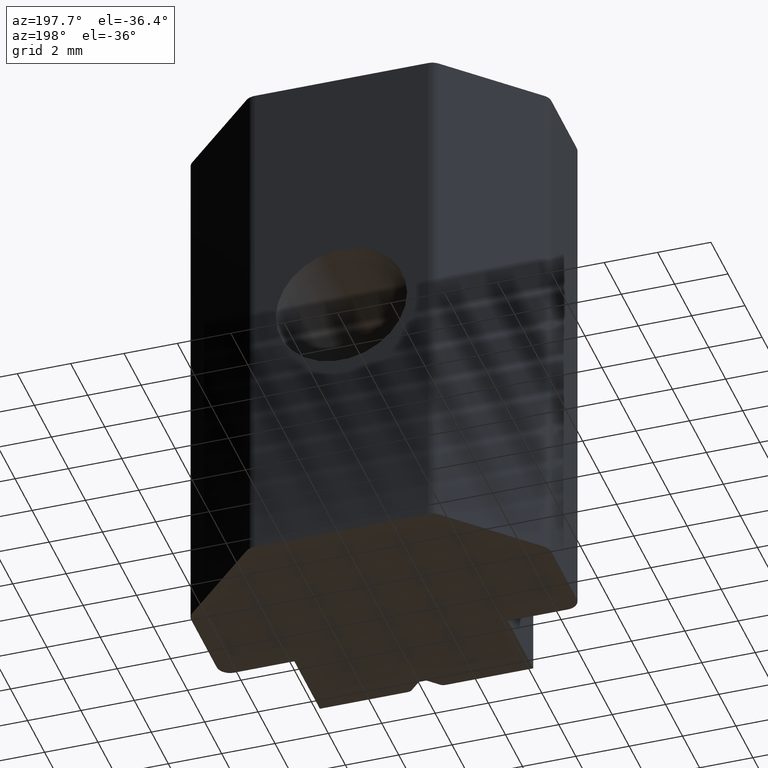
[diagram: clean part render]
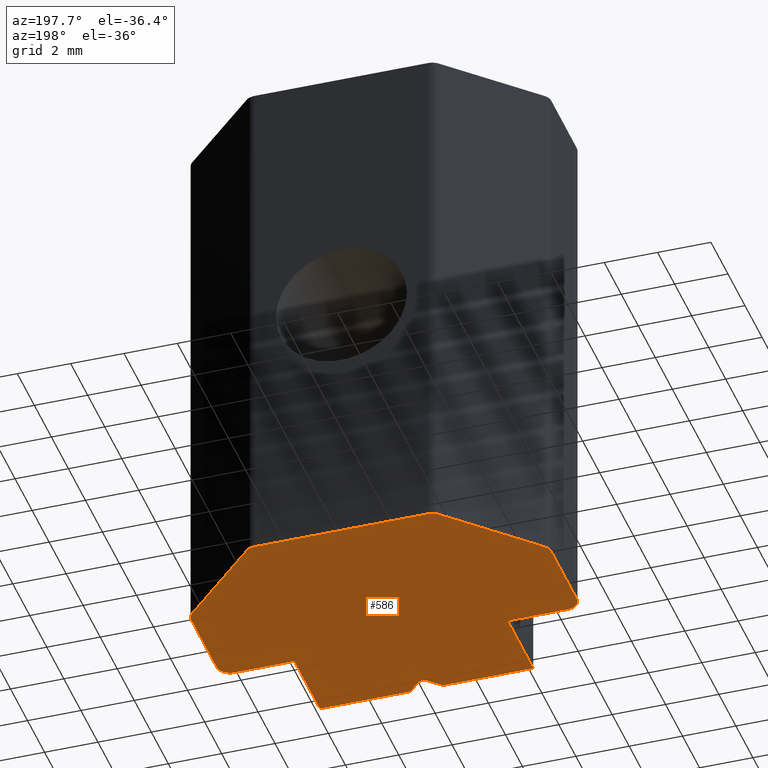
[diagram: same view with one face highlighted and labeled with its STEP entity id]
A machine part, auxiliary view. The second image highlights one B-rep face of the part: STEP entity #586.
In plain terms, the highlighted planar face has unit normal (0, 0, 1).
Its self-contained STEP definition (entity closure, byte-faithful):
#22=PLANE('',#651);
#46=FACE_OUTER_BOUND('',#76,.T.);
#76=EDGE_LOOP('',(#454,#455,#456,#457,#458,#459,#460,#461,#462,#463,#464,
#465,#466,#467,#468,#469,#470,#471,#472,#473,#474,#475));
#108=LINE('',#932,#163);
#112=LINE('',#940,#167);
#119=LINE('',#961,#174);
#126=LINE('',#977,#181);
#127=LINE('',#980,#182);
#128=LINE('',#982,#183);
#129=LINE('',#986,#184);
#130=LINE('',#990,#185);
#131=LINE('',#994,#186);
#132=LINE('',#998,#187);
#133=LINE('',#1002,#188);
#134=LINE('',#1006,#189);
#135=LINE('',#1007,#190);
#163=VECTOR('',#712,10.);
#167=VECTOR('',#718,10.);
#174=VECTOR('',#743,10.);
#181=VECTOR('',#760,10.);
#182=VECTOR('',#763,10.);
#183=VECTOR('',#764,10.);
#184=VECTOR('',#767,10.);
#185=VECTOR('',#770,10.);
#186=VECTOR('',#773,10.);
#187=VECTOR('',#776,10.);
#188=VECTOR('',#779,10.);
#189=VECTOR('',#782,10.);
#190=VECTOR('',#783,10.);
#219=CIRCLE('',#634,0.25);
#220=CIRCLE('',#638,0.25);
#222=CIRCLE('',#642,0.249999999999999);
#225=CIRCLE('',#652,0.499999999999999);
#226=CIRCLE('',#653,0.500000000000005);
#227=CIRCLE('',#654,0.499999999999994);
#228=CIRCLE('',#655,0.5);
#229=CIRCLE('',#656,0.500000000000001);
#230=CIRCLE('',#657,0.499999999999999);
#252=VERTEX_POINT('',#923);
#253=VERTEX_POINT('',#925);
#254=VERTEX_POINT('',#929);
#255=VERTEX_POINT('',#931);
#258=VERTEX_POINT('',#939);
#259=VERTEX_POINT('',#943);
#262=VERTEX_POINT('',#953);
#267=VERTEX_POINT('',#975);
#268=VERTEX_POINT('',#979);
#269=VERTEX_POINT('',#981);
#270=VERTEX_POINT('',#983);
#271=VERTEX_POINT('',#985);
#272=VERTEX_POINT('',#987);
#273=VERTEX_POINT('',#989);
#274=VERTEX_POINT('',#991);
#275=VERTEX_POINT('',#993);
#276=VERTEX_POINT('',#995);
#277=VERTEX_POINT('',#997);
#278=VERTEX_POINT('',#999);
#279=VERTEX_POINT('',#1001);
#280=VERTEX_POINT('',#1003);
#281=VERTEX_POINT('',#1005);
#313=EDGE_CURVE('',#253,#252,#219,.T.);
#316=EDGE_CURVE('',#255,#254,#108,.T.);
#320=EDGE_CURVE('',#258,#253,#112,.T.);
#322=EDGE_CURVE('',#259,#258,#220,.T.);
#328=EDGE_CURVE('',#254,#262,#222,.T.);
#331=EDGE_CURVE('',#262,#259,#119,.T.);
#339=EDGE_CURVE('',#252,#267,#126,.T.);
#340=EDGE_CURVE('',#267,#268,#127,.T.);
#341=EDGE_CURVE('',#268,#269,#128,.T.);
#342=EDGE_CURVE('',#269,#270,#225,.T.);
#343=EDGE_CURVE('',#270,#271,#129,.T.);
#344=EDGE_CURVE('',#271,#272,#226,.T.);
#345=EDGE_CURVE('',#272,#273,#130,.T.);
#346=EDGE_CURVE('',#273,#274,#227,.T.);
#347=EDGE_CURVE('',#274,#275,#131,.T.);
#348=EDGE_CURVE('',#275,#276,#228,.T.);
#349=EDGE_CURVE('',#276,#277,#132,.T.);
#350=EDGE_CURVE('',#277,#278,#229,.T.);
#351=EDGE_CURVE('',#278,#279,#133,.T.);
#352=EDGE_CURVE('',#279,#280,#230,.T.);
#353=EDGE_CURVE('',#280,#281,#134,.T.);
#354=EDGE_CURVE('',#281,#255,#135,.T.);
#454=ORIENTED_EDGE('',*,*,#328,.T.);
#455=ORIENTED_EDGE('',*,*,#331,.T.);
#456=ORIENTED_EDGE('',*,*,#322,.T.);
#457=ORIENTED_EDGE('',*,*,#320,.T.);
#458=ORIENTED_EDGE('',*,*,#313,.T.);
#459=ORIENTED_EDGE('',*,*,#339,.T.);
#460=ORIENTED_EDGE('',*,*,#340,.T.);
#461=ORIENTED_EDGE('',*,*,#341,.T.);
#462=ORIENTED_EDGE('',*,*,#342,.T.);
#463=ORIENTED_EDGE('',*,*,#343,.T.);
#464=ORIENTED_EDGE('',*,*,#344,.T.);
#465=ORIENTED_EDGE('',*,*,#345,.T.);
#466=ORIENTED_EDGE('',*,*,#346,.T.);
#467=ORIENTED_EDGE('',*,*,#347,.T.);
#468=ORIENTED_EDGE('',*,*,#348,.T.);
#469=ORIENTED_EDGE('',*,*,#349,.T.);
#470=ORIENTED_EDGE('',*,*,#350,.T.);
#471=ORIENTED_EDGE('',*,*,#351,.T.);
#472=ORIENTED_EDGE('',*,*,#352,.T.);
#473=ORIENTED_EDGE('',*,*,#353,.T.);
#474=ORIENTED_EDGE('',*,*,#354,.T.);
#475=ORIENTED_EDGE('',*,*,#316,.T.);
#586=ADVANCED_FACE('',(#46),#22,.F.);
#634=AXIS2_PLACEMENT_3D('',#926,#706,#707);
#638=AXIS2_PLACEMENT_3D('',#944,#722,#723);
#642=AXIS2_PLACEMENT_3D('',#955,#734,#735);
#651=AXIS2_PLACEMENT_3D('',#978,#761,#762);
#652=AXIS2_PLACEMENT_3D('',#984,#765,#766);
#653=AXIS2_PLACEMENT_3D('',#988,#768,#769);
#654=AXIS2_PLACEMENT_3D('',#992,#771,#772);
#655=AXIS2_PLACEMENT_3D('',#996,#774,#775);
#656=AXIS2_PLACEMENT_3D('',#1000,#777,#778);
#657=AXIS2_PLACEMENT_3D('',#1004,#780,#781);
#706=DIRECTION('center_axis',(0.,0.,-1.));
#707=DIRECTION('ref_axis',(5.55111512312579E-16,1.,0.));
#712=DIRECTION('',(-1.,0.,0.));
#718=DIRECTION('',(-0.707106781186547,-0.707106781186548,0.));
#722=DIRECTION('center_axis',(0.,0.,1.));
#723=DIRECTION('ref_axis',(0.707106781186547,0.707106781186548,0.));
#734=DIRECTION('center_axis',(0.,0.,-1.));
#735=DIRECTION('ref_axis',(0.707106781186548,0.707106781186547,0.));
#743=DIRECTION('',(-0.707106781186545,0.707106781186549,0.));
#760=DIRECTION('',(-1.,0.,0.));
#761=DIRECTION('center_axis',(0.,0.,1.));
#762=DIRECTION('ref_axis',(1.,0.,0.));
#763=DIRECTION('',(0.,1.,0.));
#764=DIRECTION('',(-1.,0.,0.));
#765=DIRECTION('center_axis',(0.,0.,-1.));
#766=DIRECTION('ref_axis',(-1.,0.,0.));
#767=DIRECTION('',(0.,1.,0.));
#768=DIRECTION('center_axis',(0.,0.,-1.));
#769=DIRECTION('ref_axis',(-0.707106781186549,0.707106781186546,0.));
#770=DIRECTION('',(0.707106781186547,0.707106781186548,0.));
#771=DIRECTION('center_axis',(0.,0.,-1.));
#772=DIRECTION('ref_axis',(0.,1.,0.));
#773=DIRECTION('',(1.,0.,0.));
#774=DIRECTION('center_axis',(0.,0.,-1.));
#775=DIRECTION('ref_axis',(0.707106781186548,0.707106781186547,0.));
#776=DIRECTION('',(0.707106781186547,-0.707106781186548,0.));
#777=DIRECTION('center_axis',(0.,0.,-1.));
#778=DIRECTION('ref_axis',(1.,-1.11022302462516E-15,0.));
#779=DIRECTION('',(3.70074341541719E-16,-1.,0.));
#780=DIRECTION('center_axis',(0.,0.,-1.));
#781=DIRECTION('ref_axis',(0.,-1.,0.));
#782=DIRECTION('',(-1.,0.,0.));
#783=DIRECTION('',(0.,-1.,0.));
#923=CARTESIAN_POINT('',(-0.707106781186547,-3.,-10.));
#925=CARTESIAN_POINT('',(-0.53033008588991,-2.92677669529664,-10.));
#926=CARTESIAN_POINT('Origin',(-0.707106781186547,-2.75,-10.));
#929=CARTESIAN_POINT('',(0.707106781186547,-3.,-10.));
#931=CARTESIAN_POINT('',(4.,-3.,-10.));
#932=CARTESIAN_POINT('',(-4.,-3.,-10.));
#939=CARTESIAN_POINT('',(-0.176776695296637,-2.57322330470336,-10.));
#940=CARTESIAN_POINT('',(0.96724365896336,-1.42920295044337,-10.));
#943=CARTESIAN_POINT('',(0.176776695296638,-2.57322330470336,-10.));
#944=CARTESIAN_POINT('Origin',(-4.71467650385233E-30,-2.75,-10.));
#953=CARTESIAN_POINT('',(0.530330085889911,-2.92677669529664,-10.));
#955=CARTESIAN_POINT('Origin',(0.707106781186547,-2.75,-10.));
#961=CARTESIAN_POINT('',(-0.790466963666722,-1.60597964574,-10.));
#975=CARTESIAN_POINT('',(-4.,-3.,-10.));
#977=CARTESIAN_POINT('',(-4.,-3.,-10.));
#978=CARTESIAN_POINT('Origin',(0.,1.82608141703999,-10.));
#979=CARTESIAN_POINT('',(-4.,0.,-10.));
#980=CARTESIAN_POINT('',(-4.,0.,-10.));
#981=CARTESIAN_POINT('',(-6.25,0.,-10.));
#982=CARTESIAN_POINT('',(-6.25,0.,-10.));
#983=CARTESIAN_POINT('',(-6.75,0.5,-10.));
#984=CARTESIAN_POINT('Origin',(-6.25,0.5,-10.));
#985=CARTESIAN_POINT('',(-6.75,3.5,-10.));
#986=CARTESIAN_POINT('',(-6.75,3.5,-10.));
#987=CARTESIAN_POINT('',(-6.60355339059328,3.85355339059327,-10.));
#988=CARTESIAN_POINT('Origin',(-6.25,3.5,-10.));
#989=CARTESIAN_POINT('',(-3.60355339059328,6.85355339059327,-10.));
#990=CARTESIAN_POINT('',(-3.60355339059328,6.85355339059327,-10.));
#991=CARTESIAN_POINT('',(-3.25,7.,-10.));
#992=CARTESIAN_POINT('Origin',(-3.25,6.5,-10.));
#993=CARTESIAN_POINT('',(3.25,7.,-10.));
#994=CARTESIAN_POINT('',(3.25,7.,-10.));
#995=CARTESIAN_POINT('',(3.60355339059328,6.85355339059327,-10.));
#996=CARTESIAN_POINT('Origin',(3.25,6.5,-10.));
#997=CARTESIAN_POINT('',(6.60355339059327,3.85355339059327,-10.));
#998=CARTESIAN_POINT('',(6.60355339059327,3.85355339059327,-10.));
#999=CARTESIAN_POINT('',(6.75,3.5,-10.));
#1000=CARTESIAN_POINT('Origin',(6.25,3.5,-10.));
#1001=CARTESIAN_POINT('',(6.75,0.5,-10.));
#1002=CARTESIAN_POINT('',(6.75,0.5,-10.));
#1003=CARTESIAN_POINT('',(6.25,0.,-10.));
#1004=CARTESIAN_POINT('Origin',(6.25,0.5,-10.));
#1005=CARTESIAN_POINT('',(4.,0.,-10.));
#1006=CARTESIAN_POINT('',(4.,0.,-10.));
#1007=CARTESIAN_POINT('',(4.,-3.,-10.));